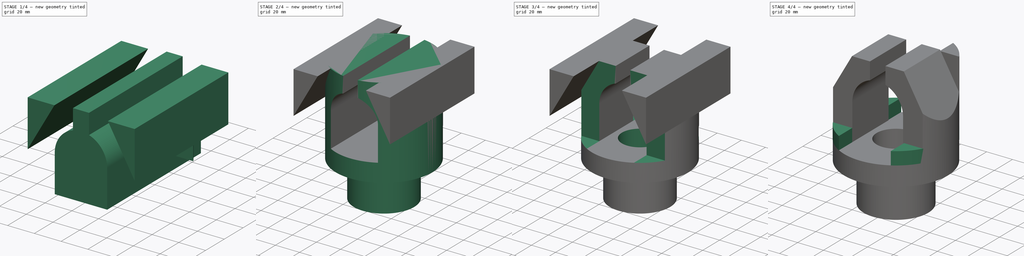
[diagram: build sequence overview — one tinted view per stage of 4, left to right]
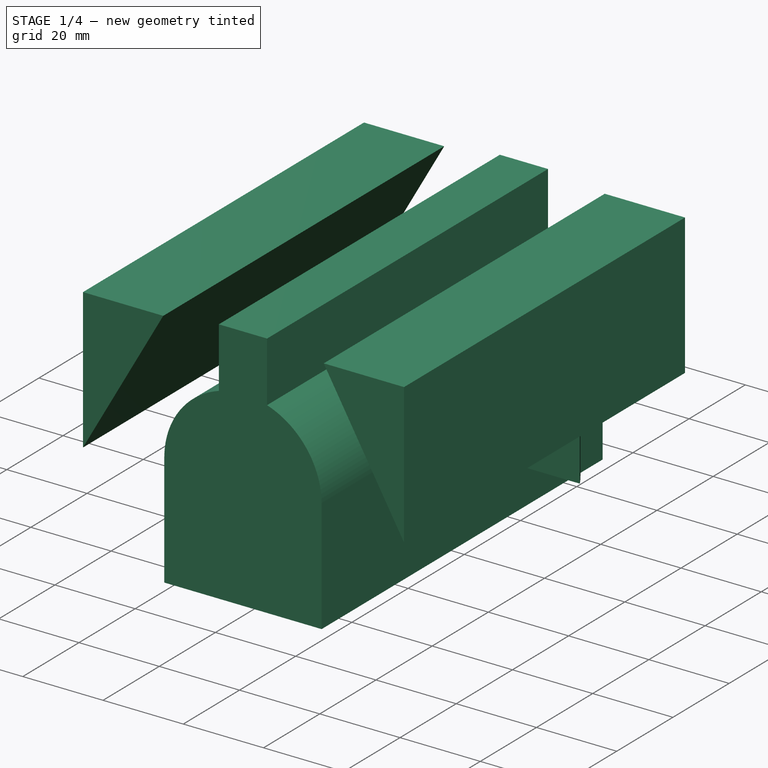
[diagram: stage 1 of 4 — iso view after this stage's code; geometry added in this stage tinted green]
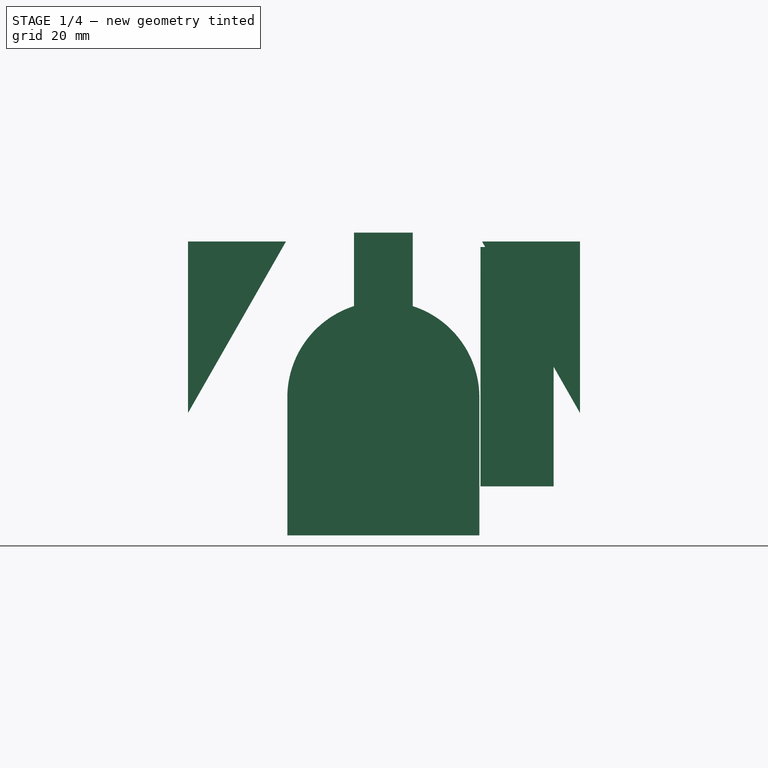
[diagram: stage 1 of 4 — front view after this stage's code; geometry added in this stage tinted green]
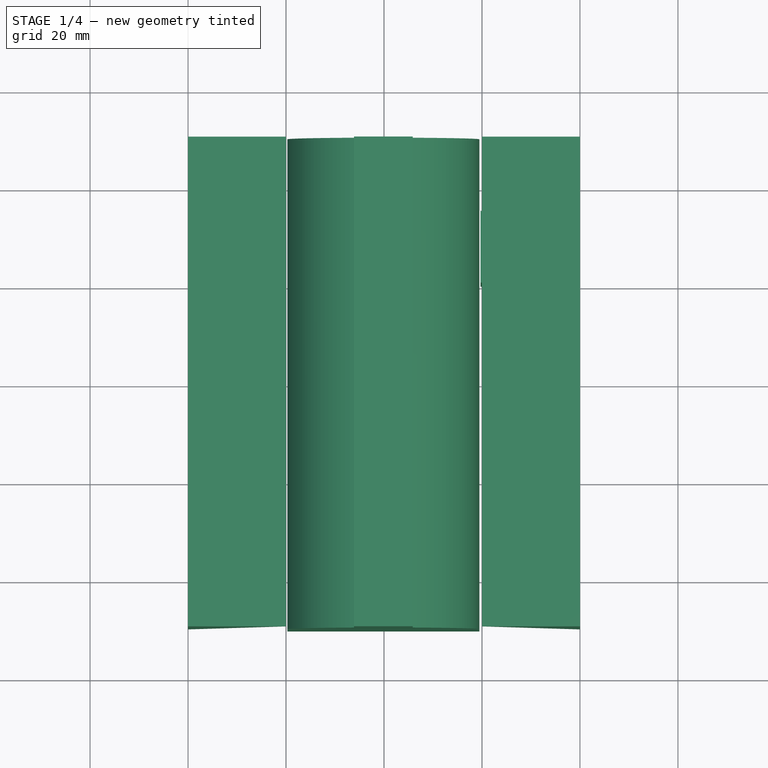
[diagram: stage 1 of 4 — top view after this stage's code; geometry added in this stage tinted green]
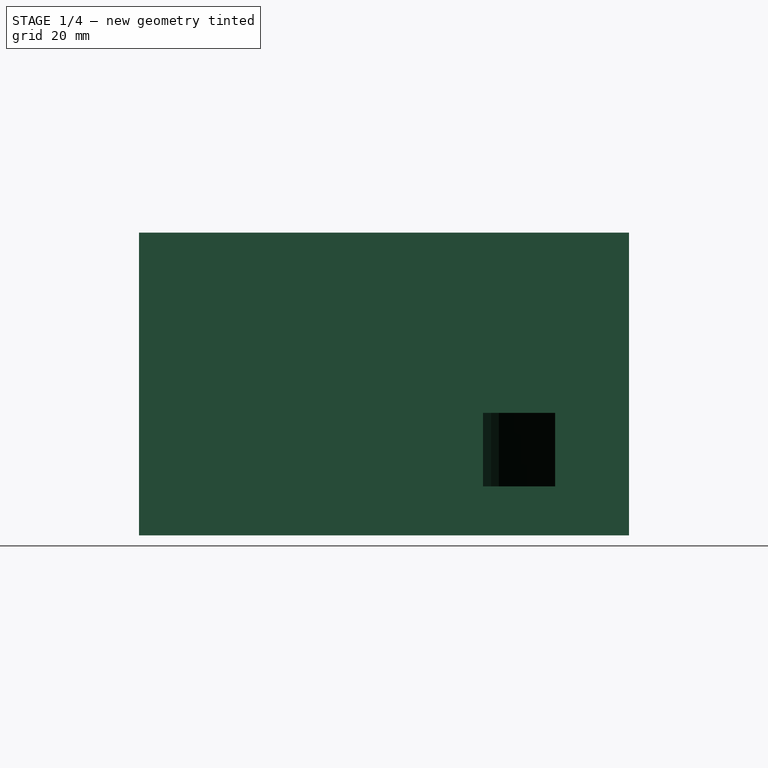
[diagram: stage 1 of 4 — right view after this stage's code; geometry added in this stage tinted green]
FCSTD DOCUMENT  (FreeCAD 0.16R)
Label: ejer11-2
License: All rights reserved
LicenseURL: http://en.wikipedia.org/wiki/All_rights_reserved
objects: Sketcher::SketchObject×7, PartDesign::Pad×5, Part::Cut×2, PartDesign::Pocket×2, Part::Feature×2, PartDesign::PolarPattern×1, Part::Extrusion×1
note: 27 computed .brp shape members not serialized (recipe doc carries the construction recipe); baked Part::Feature solids carry a one-line shape summary decoded from their .brp

FEATURE [Sketcher::SketchObject] Sketch002
  Placement = pos=(-101.78,0,0) rot=(-1,0,0;4.71239rad)
  sketch-geometry (9):
    g0: LineSegment StartX=82.0457 StartY=45 StartZ=0 EndX=121.246 EndY=45 EndZ=0
    g1: LineSegment StartX=121.246 StartY=45 StartZ=0 EndX=121.246 EndY=73.4254 EndZ=0
    g2: LineSegment StartX=82.0457 StartY=45 StartZ=0 EndX=82.0457 EndY=73.4254 EndZ=0
    g3: LineSegment [constr] StartX=101.646 StartY=0 StartZ=0 EndX=101.646 EndY=93 EndZ=0
    g4: ArcOfCircle CenterX=101.646 CenterY=73.1389 CenterZ=0 NormalX=0 NormalY=0 NormalZ=1 Radius=19.6022 StartAngle=0.0146202 EndAngle=1.25983
    g5: LineSegment StartX=95.6437 StartY=91.7996 StartZ=0 EndX=95.6437 EndY=106.8 EndZ=0
    g6: LineSegment StartX=95.6437 StartY=106.8 StartZ=0 EndX=107.644 EndY=106.8 EndZ=0
    g7: LineSegment StartX=107.644 StartY=106.8 StartZ=0 EndX=107.644 EndY=91.801 EndZ=0
    g8: ArcOfCircle CenterX=101.646 CenterY=73.1389 CenterZ=0 NormalX=0 NormalY=0 NormalZ=1 Radius=19.6022 StartAngle=1.88199 EndAngle=3.12697
  constraints (24):
    c: Horizontal(g0)
    c: Coincident(g0,g1)
    c: Vertical(g1)
    c: Coincident(g0,g2)
    c: Vertical(g2)
    c: PointOnObject(g3,g-1)
    c: Vertical(g3)
    c: Symmetric(g0,g0,g3)
    c: DistanceY(g3,g0) = 45
    c: PointOnObject(g4,g1)
    c: Vertical(g5)
    c: Coincident(g5,g6)
    c: Horizontal(g6)
    c: Coincident(g6,g7)
    c: Vertical(g7)
    c: PointOnObject(g5,g4)
    c: DistanceY(g5,g5) = 15
    c: DistanceX(g6,g6) = 12
    c: Equal(g4,g8)
    c: Coincident(g4,g7)
    c: Coincident(g4,g8)
    c: PointOnObject(g8,g5)
    c: Coincident(g8,g2)
    c: Coincident(g1,g4)
FEATURE [PartDesign::Pad] Pad002
  Length = 100
  Length2 = 100
  Midplane = true
  Placement = pos=(-101.78,0,0) rot=(-1,0,0;4.71239rad)
  Sketch = -> Sketch002
  Type = 0
FEATURE [Sketcher::SketchObject] Sketch005
  Placement = pos=(0,0,0) rot=(-1,0,0;4.71239rad)
  sketch-geometry (12):
    g0: LineSegment [constr] StartX=-40 StartY=0 StartZ=0 EndX=-40 EndY=105 EndZ=0
    g1: LineSegment [constr] StartX=40 StartY=0 StartZ=0 EndX=40 EndY=105 EndZ=0
    g2: LineSegment [constr] StartX=-40 StartY=0 StartZ=0 EndX=-40 EndY=70 EndZ=0
    g3: LineSegment [constr] StartX=40 StartY=0 StartZ=0 EndX=40 EndY=70 EndZ=0
    g4: LineSegment StartX=-40 StartY=105 StartZ=0 EndX=-20 EndY=105 EndZ=0
    g5: LineSegment StartX=40 StartY=105 StartZ=0 EndX=20 EndY=105 EndZ=0
    g6: LineSegment StartX=-20 StartY=105 StartZ=0 EndX=-40 EndY=70 EndZ=0
    g7: LineSegment StartX=-40 StartY=70 StartZ=0 EndX=-40 EndY=105 EndZ=0
    g8: LineSegment StartX=-40 StartY=105 StartZ=0 EndX=-20.2332 EndY=105 EndZ=0
    g9: LineSegment StartX=20 StartY=105 StartZ=0 EndX=40 EndY=70 EndZ=0
    g10: LineSegment StartX=40 StartY=70 StartZ=0 EndX=40 EndY=105 EndZ=0
    g11: LineSegment StartX=40 StartY=105 StartZ=0 EndX=20 EndY=105 EndZ=0
  constraints (34):
    c: PointOnObject(g0,g-1)
    c: Vertical(g0)
    c: DistanceX(g0,g-1) = 40
    c: PointOnObject(g1,g-1)
    c: Vertical(g1)
    c: DistanceX(g-1,g1) = 40
    c: DistanceY(g-1,g0) = 105
    c: DistanceY(g1,g1) = 105
    c: Vertical(g2)
    c: PointOnObject(g3,g-1)
    c: Vertical(g3)
    c: PointOnObject(g2,g-1)
    c: DistanceY(g2,g2) = 70
    c: DistanceY(g3,g3) = 70
    c: DistanceX(g-1,g3) = 40
    c: DistanceX(g2,g-1) = 40
    c: Coincident(g4,g0)
    c: Horizontal(g4)
    c: Coincident(g5,g1)
    c: Horizontal(g5)
    c: DistanceX(g5,g5) = 20
    c: DistanceX(g4,g4) = 20
    c: Coincident(g4,g6)
    c: Coincident(g6,g2)
    c: Coincident(g6,g7)
    c: Coincident(g7,g0)
    c: Coincident(g7,g8)
    c: Horizontal(g8)
    c: Coincident(g5,g9)
    c: Coincident(g9,g3)
    c: Coincident(g9,g10)
    c: Coincident(g10,g1)
    c: Coincident(g10,g11)
    c: Coincident(g11,g9)
FEATURE [PartDesign::Pad] Pad003
  Length = 100
  Length2 = 100
  Midplane = true
  Placement = pos=(0,0,0) rot=(-1,0,0;4.71239rad)
  Sketch = -> Sketch005
  Type = 0
FEATURE [Part::Feature] Face
  Placement = pos=(0,0,10) rot=(0,0,1;3.14159rad)
  shape: bbox 14.95 x 14.72 x 2e-07 mm, 1 faces, 0 solids (baked)
FEATURE [Part::Feature] Face001
  Placement = pos=(0,0,10) rot=(0,0,1;3.14159rad)
  shape: bbox 14.95 x 14.72 x 2e-07 mm, 1 faces, 0 solids (baked)
FEATURE [Part::Extrusion] Extrusion
  Base = -> Face001
  Dir = (0,0,48.8666)
  Solid = true
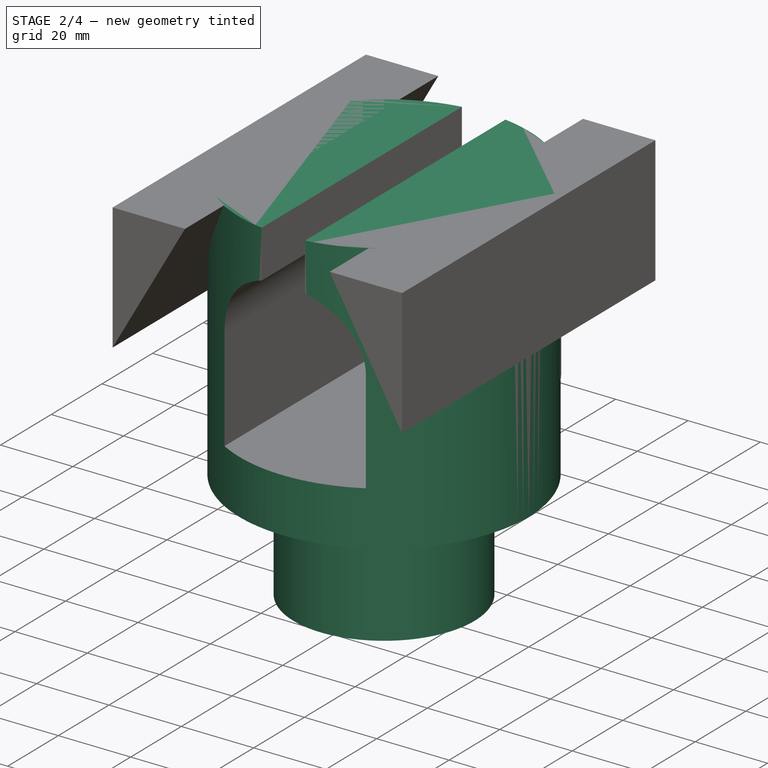
[diagram: stage 2 of 4 — iso view after this stage's code; geometry added in this stage tinted green]
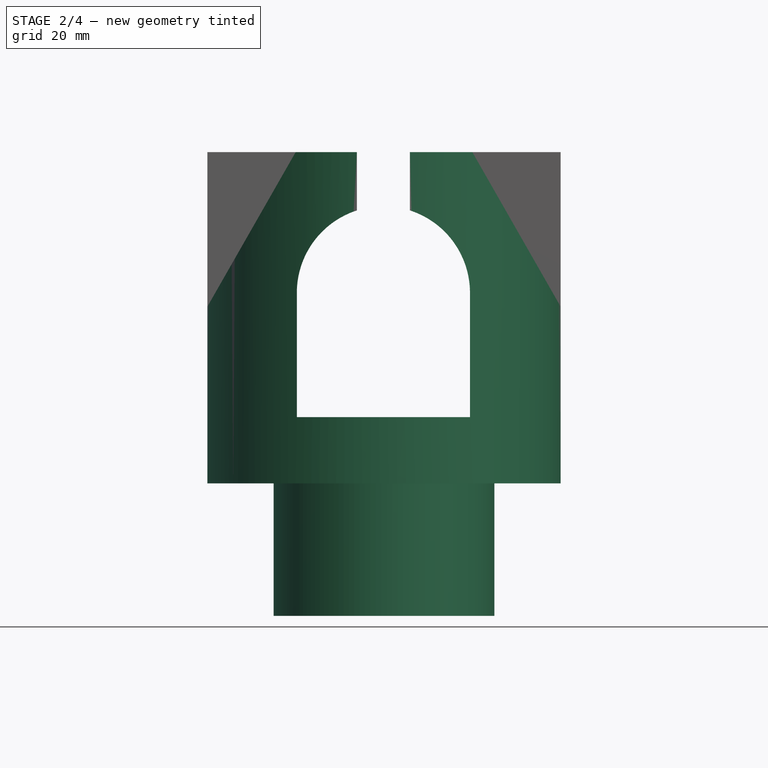
[diagram: stage 2 of 4 — front view after this stage's code; geometry added in this stage tinted green]
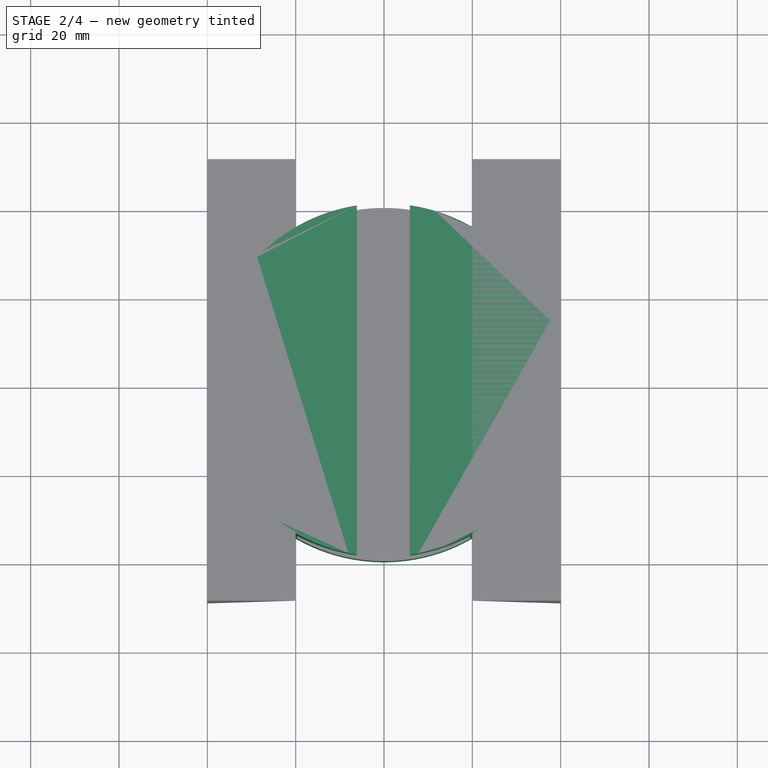
[diagram: stage 2 of 4 — top view after this stage's code; geometry added in this stage tinted green]
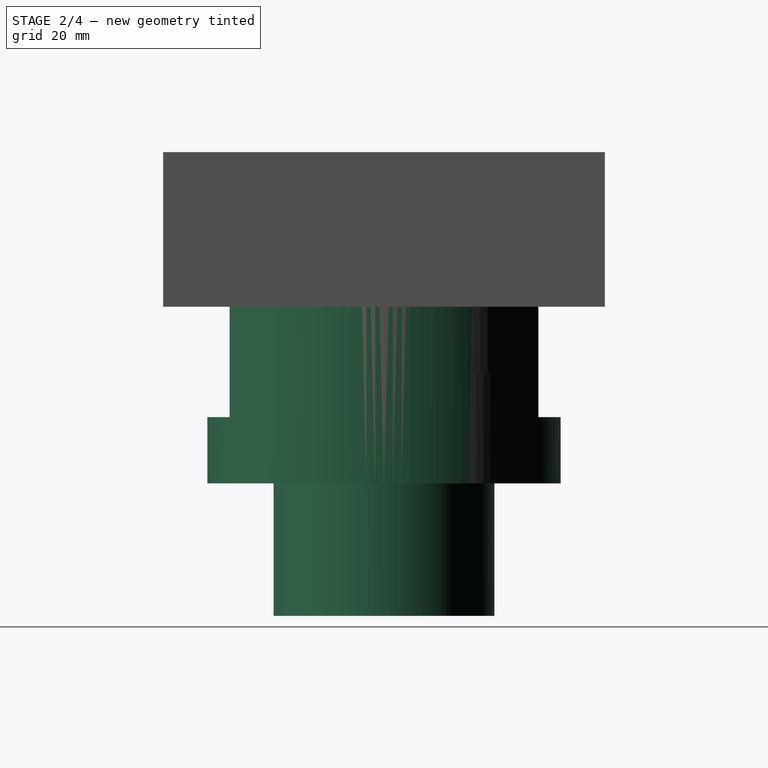
[diagram: stage 2 of 4 — right view after this stage's code; geometry added in this stage tinted green]
FEATURE [Sketcher::SketchObject] Sketch
  sketch-geometry (1):
    g0: Circle CenterX=0 CenterY=0 CenterZ=0 NormalX=0 NormalY=0 NormalZ=1 Radius=25
  constraints (2):
    c: Coincident(g0,g-1)
    c: Radius(g0) = 25
FEATURE [PartDesign::Pad] Pad
  Length = 30
  Length2 = 100
  Sketch = -> Sketch
  Type = 0
FEATURE [Sketcher::SketchObject] Sketch001
  Placement = pos=(0,0,30) rot=(0,0,1;0rad)
  Support = -> Pad [Face3]
  sketch-geometry (1):
    g0: Circle CenterX=0 CenterY=0 CenterZ=0 NormalX=0 NormalY=0 NormalZ=1 Radius=40
  constraints (2):
    c: Coincident(g0,g-1)
    c: Radius(g0) = 40
FEATURE [PartDesign::Pad] Pad001
  Length = 75
  Length2 = 100
  Sketch = -> Sketch001
  Type = 0
FEATURE [Part::Cut] Cut
  Base = -> Pad001
  Tool = -> Pad002
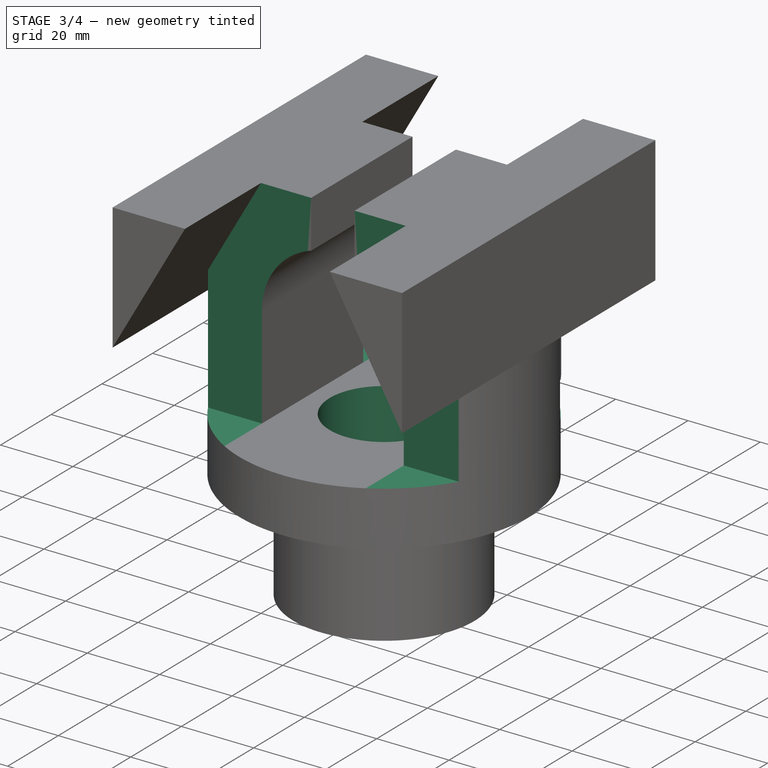
[diagram: stage 3 of 4 — iso view after this stage's code; geometry added in this stage tinted green]
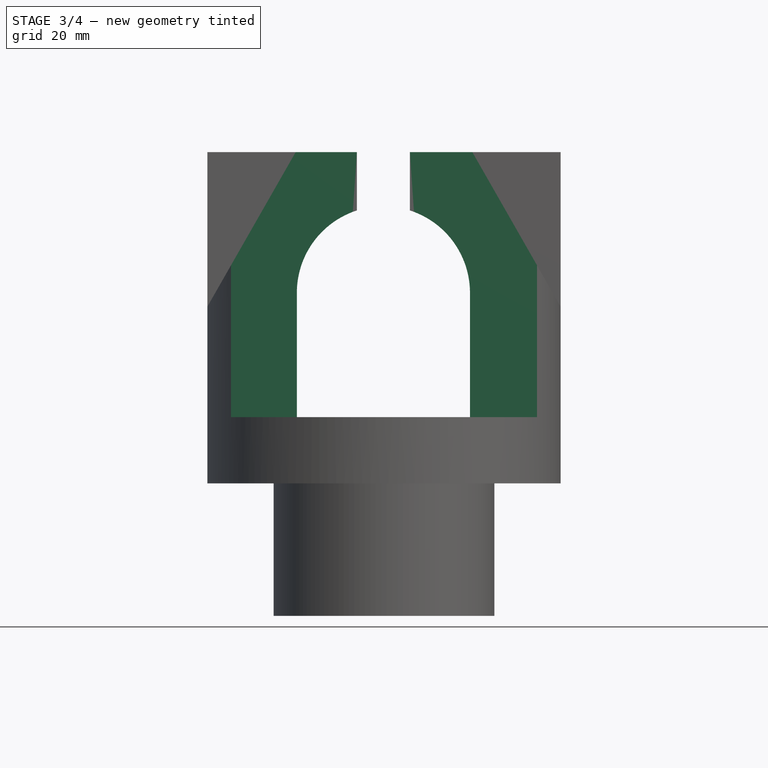
[diagram: stage 3 of 4 — front view after this stage's code; geometry added in this stage tinted green]
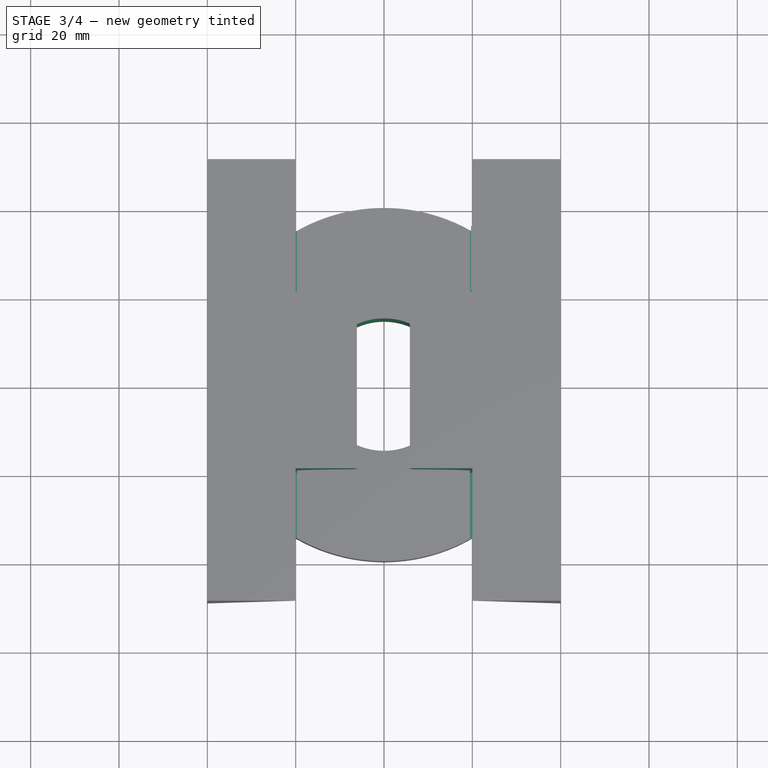
[diagram: stage 3 of 4 — top view after this stage's code; geometry added in this stage tinted green]
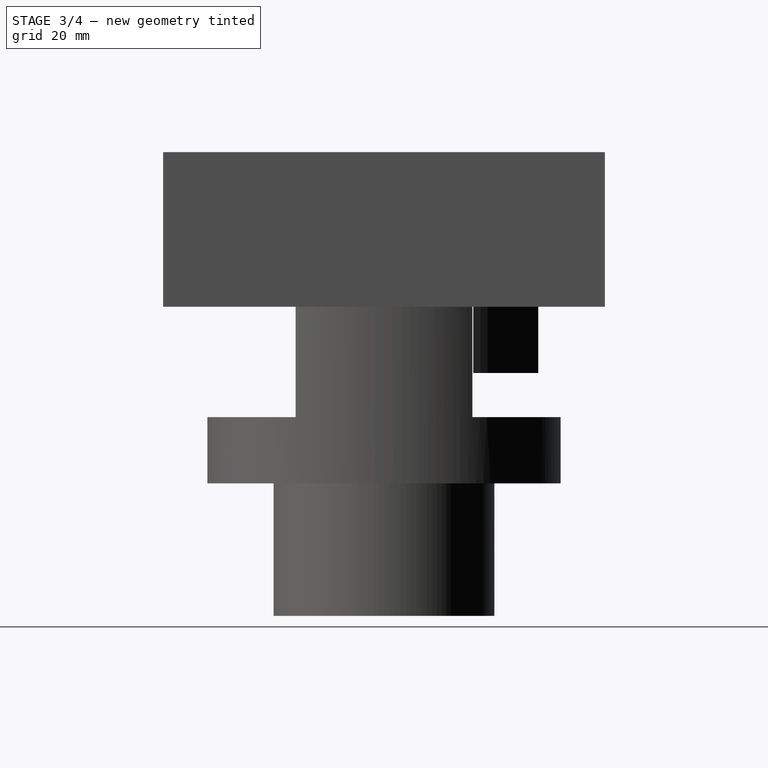
[diagram: stage 3 of 4 — right view after this stage's code; geometry added in this stage tinted green]
FEATURE [Sketcher::SketchObject] Sketch003
  Placement = pos=(0,0,45) rot=(0,0,1;0rad)
  Support = -> Cut [Face9]
  sketch-geometry (1):
    g0: Circle CenterX=0 CenterY=0 CenterZ=0 NormalX=0 NormalY=0 NormalZ=1 Radius=15
  constraints (2):
    c: Coincident(g0,g-1)
    c: Radius(g0) = 15
FEATURE [PartDesign::Pocket] Pocket
  Length = 5
  Sketch = -> Sketch003
  Type = 1
FEATURE [Sketcher::SketchObject] Sketch004
  ExternalGeometry = -> [Pocket]
  Placement = pos=(0,0,45) rot=(0,0,1;0rad)
  Support = -> Pocket [Face5]
  sketch-geometry (8):
    g0: LineSegment StartX=50 StartY=40 StartZ=0 EndX=-50 EndY=40 EndZ=0
    g1: LineSegment StartX=-50 StartY=40 StartZ=0 EndX=-50 EndY=20 EndZ=0
    g2: LineSegment StartX=-50 StartY=20 StartZ=0 EndX=50 EndY=20 EndZ=0
    g3: LineSegment StartX=50 StartY=20 StartZ=0 EndX=50 EndY=40 EndZ=0
    g4: LineSegment StartX=-50 StartY=-20 StartZ=0 EndX=50 EndY=-20 EndZ=0
    g5: LineSegment StartX=50 StartY=-20 StartZ=0 EndX=50 EndY=-40 EndZ=0
    g6: LineSegment StartX=50 StartY=-40 StartZ=0 EndX=-50 EndY=-40 EndZ=0
    g7: LineSegment StartX=-50 StartY=-40 StartZ=0 EndX=-50 EndY=-20 EndZ=0
  constraints (24):
    c: Coincident(g0,g1)
    c: Coincident(g1,g2)
    c: Coincident(g2,g3)
    c: Coincident(g3,g0)
    c: Horizontal(g0)
    c: Horizontal(g2)
    c: Vertical(g1)
    c: Vertical(g3)
    c: Symmetric(g0,g0,g-2)
    c: DistanceY(g-1,g0) = 40
    c: DistanceY(g3,g3) = 20
    c: Coincident(g4,g5)
    c: Coincident(g5,g6)
    c: Coincident(g6,g7)
    c: Coincident(g7,g4)
    c: Horizontal(g4)
    c: Horizontal(g6)
    c: Vertical(g5)
    c: Vertical(g7)
    c: Symmetric(g6,g5,g-2)
    c: DistanceY(g6,g-1) = 40
    c: DistanceY(g5,g5) = 20
    c: DistanceX(g0,g0) = 100
    c: DistanceX(g6,g6) = 100
FEATURE [PartDesign::Pocket] Pocket001
  Length = 5
  Reversed = true
  Sketch = -> Sketch004
  Type = 1
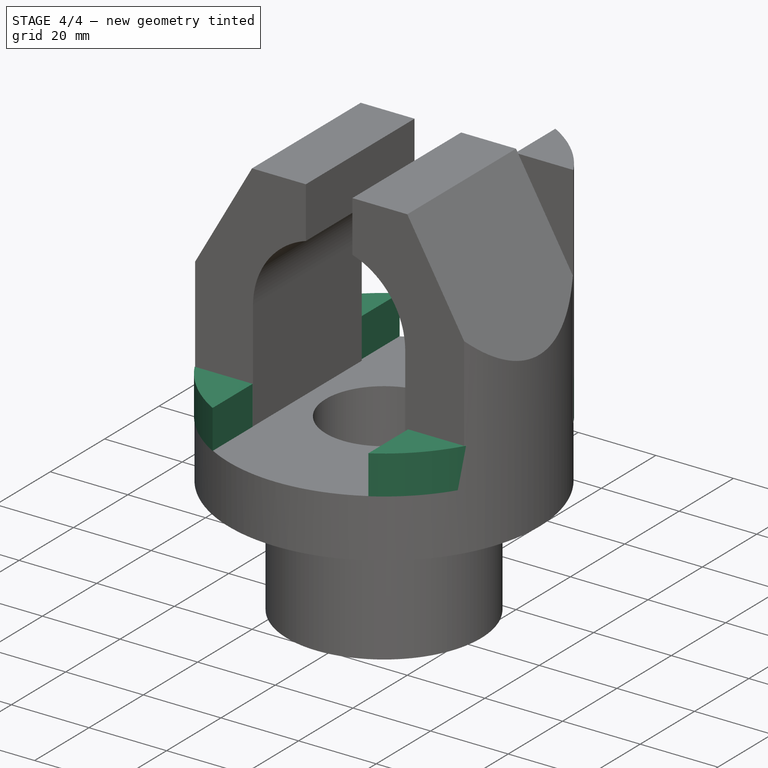
[diagram: stage 4 of 4 — iso view after this stage's code; geometry added in this stage tinted green]
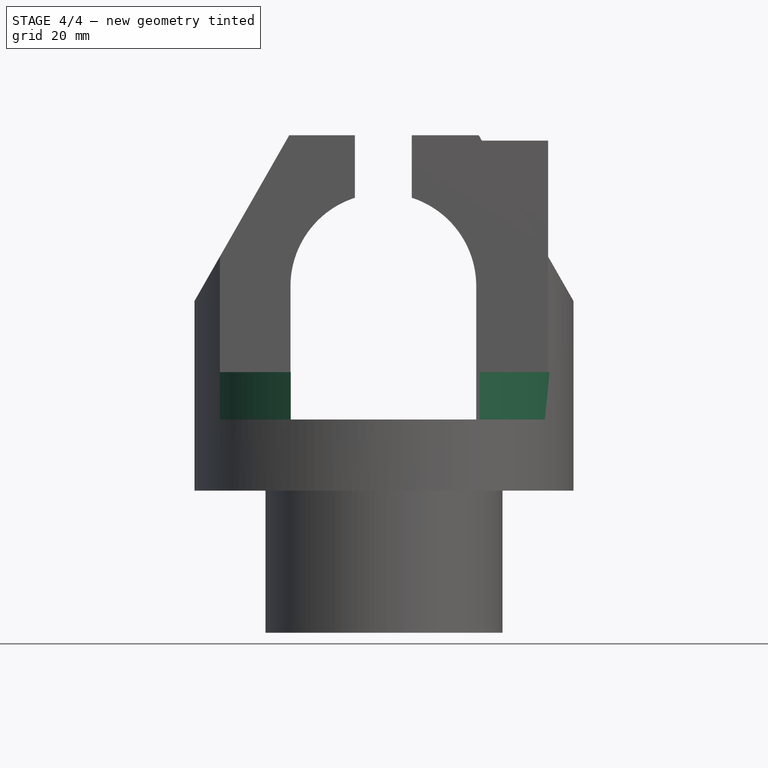
[diagram: stage 4 of 4 — front view after this stage's code; geometry added in this stage tinted green]
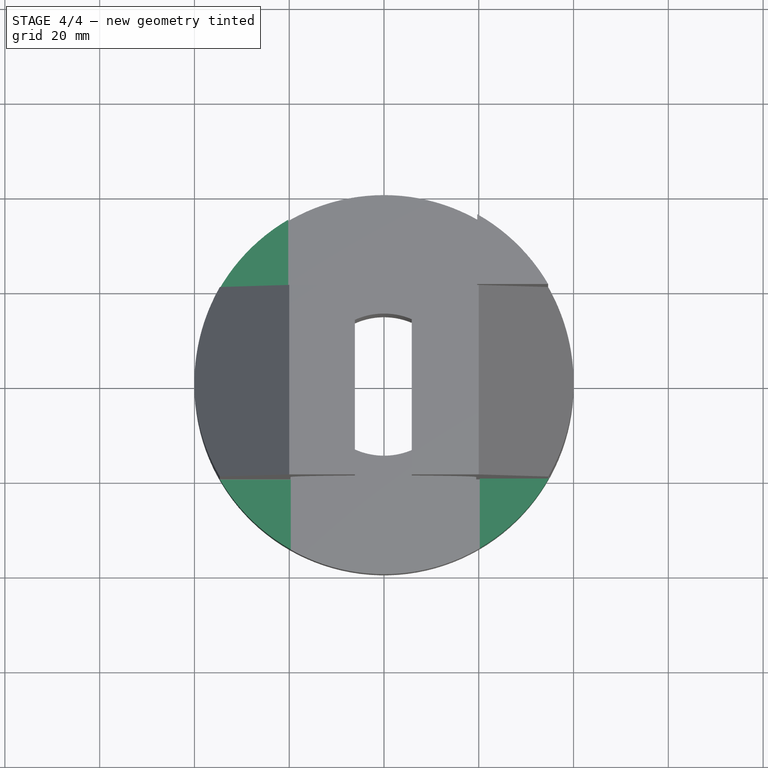
[diagram: stage 4 of 4 — top view after this stage's code; geometry added in this stage tinted green]
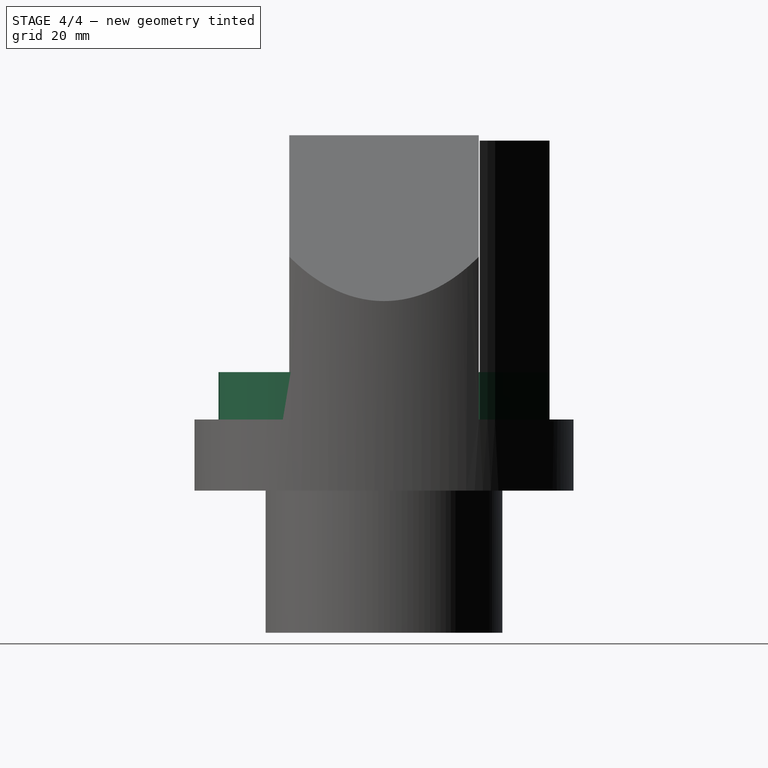
[diagram: stage 4 of 4 — right view after this stage's code; geometry added in this stage tinted green]
FEATURE [Part::Cut] Cut001
  Base = -> Pocket001
  Tool = -> Pad003
FEATURE [Sketcher::SketchObject] Sketch006
  Placement = pos=(0,0,45) rot=(0,0,1;0rad)
  Support = -> Cut001 [Face14]
  sketch-geometry (3):
    g0: LineSegment StartX=-34.6358 StartY=-20.2166 StartZ=0 EndX=-19.6908 EndY=-20.2166 EndZ=0
    g1: LineSegment StartX=-19.6908 StartY=-20.2166 StartZ=0 EndX=-19.6908 EndY=-34.9374 EndZ=0
    g2: ArcOfCircle CenterX=0 CenterY=0 CenterZ=0 NormalX=0 NormalY=0 NormalZ=1 Radius=40.1043 StartAngle=3.66993 EndAngle=4.19916
  constraints (5):
    c: Horizontal(g0)
    c: Coincident(g0,g1)
    c: Vertical(g1)
    c: Coincident(g2,g1)
    c: Coincident(g2,g0)
FEATURE [PartDesign::Pad] Pad004
  Length = 10
  Length2 = 100
  Sketch = -> Sketch006
  Type = 0
FEATURE [PartDesign::PolarPattern] PolarPattern
  Angle = 360
  Axis = -> Sketch006 [N_Axis]
  Occurrences = 4
  Originals = -> [Pad004]
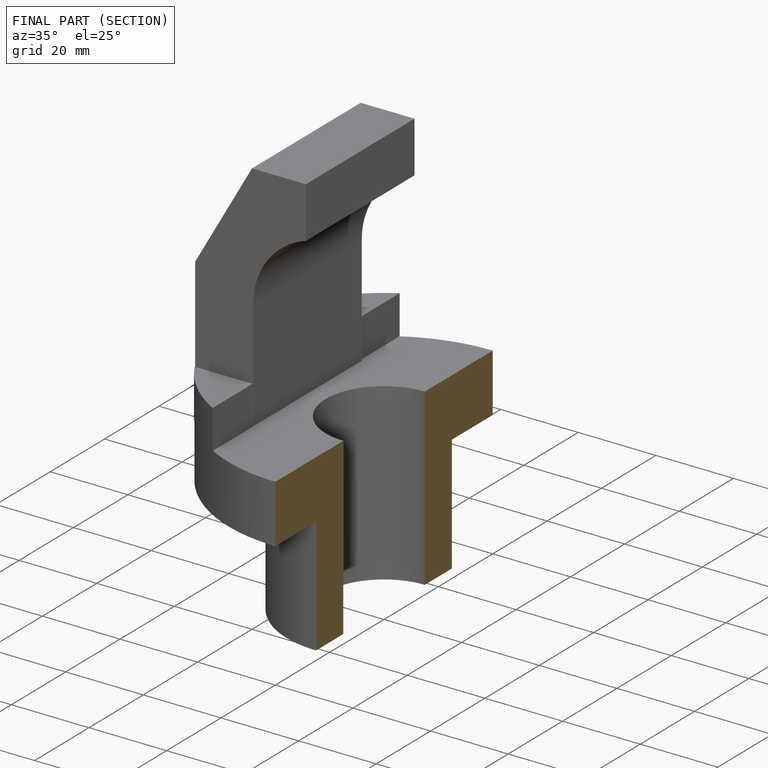
[diagram: finished part — half-section view (interior)]
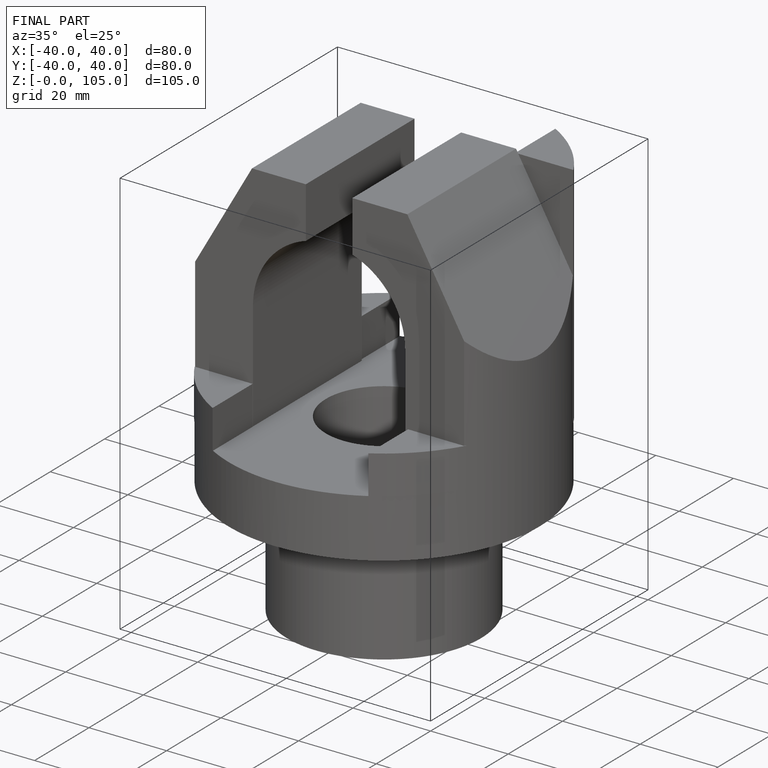
[diagram: finished part — iso view with bounding-box wireframe]
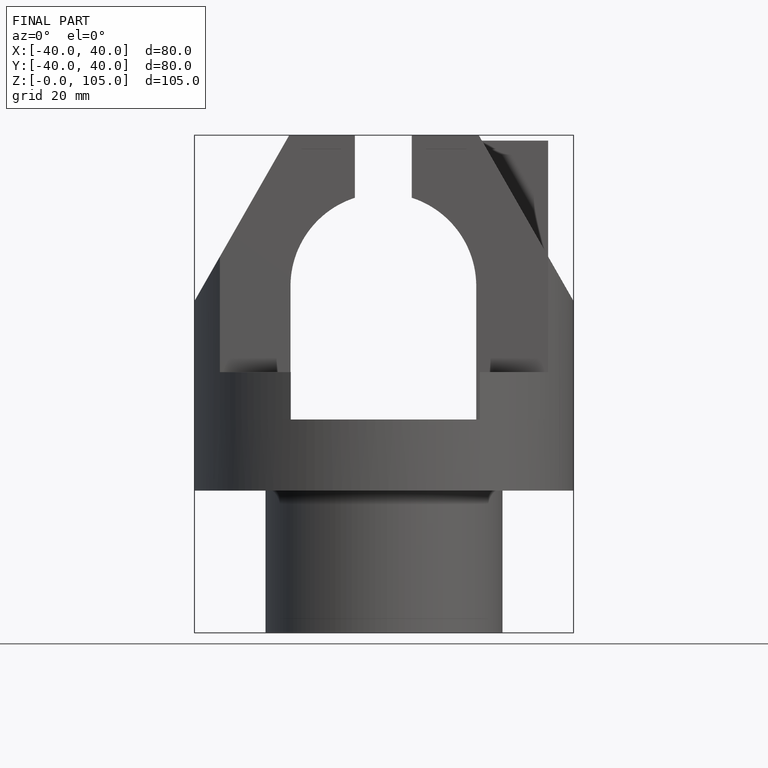
[diagram: finished part — front view with bounding-box wireframe]
